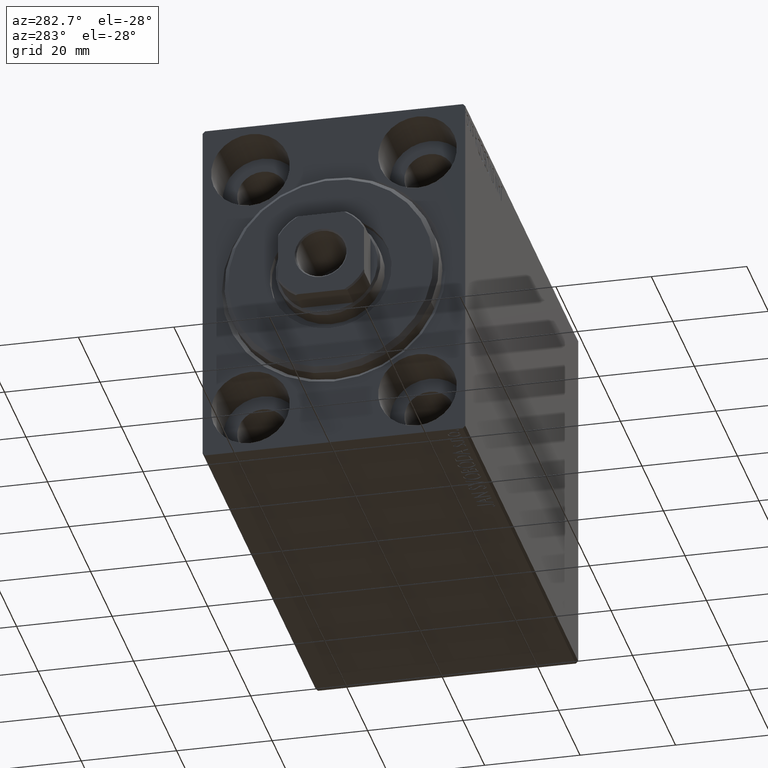
[diagram: clean part render]
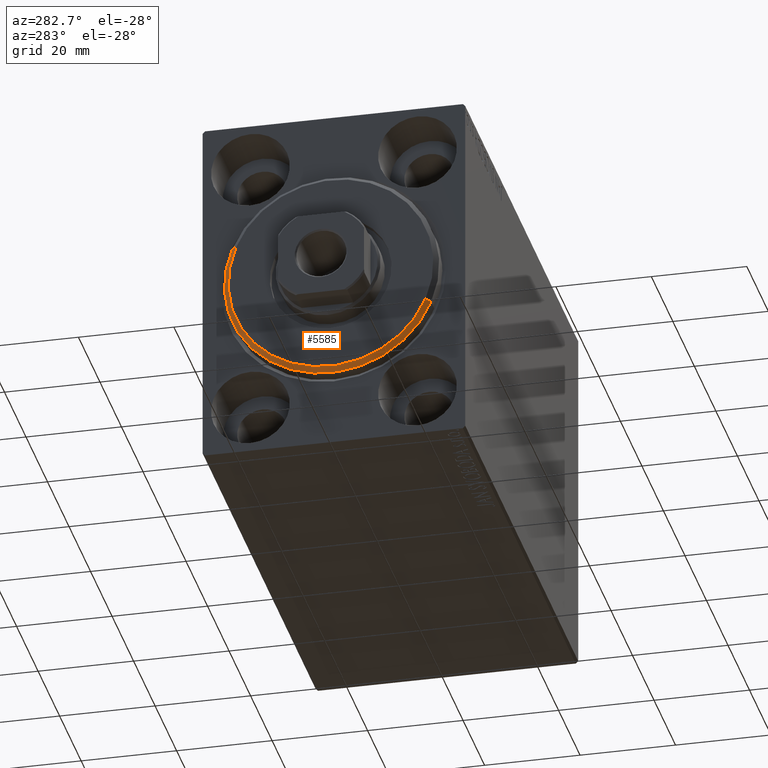
[diagram: same view with one face highlighted and labeled with its STEP entity id]
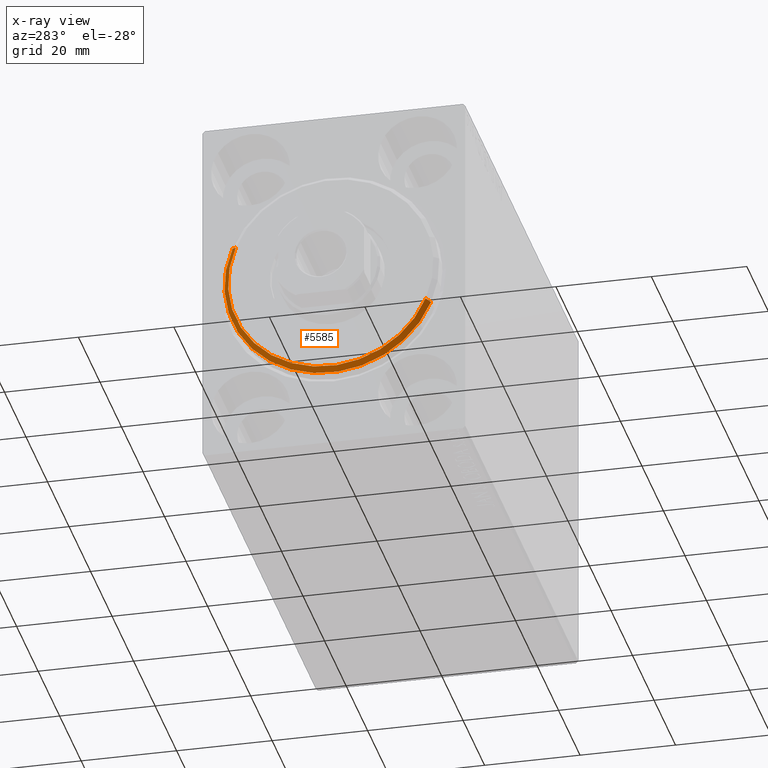
[diagram: x-ray of the same camera — body ghosted, the highlighted face saturated]
A machine part, auxiliary view. The second image highlights one B-rep face of the part: STEP entity #5585.
The next image is the same camera in x-ray: the body ghosted, the highlighted face saturated — about 0% of this face is hidden behind the body in this view.
In plain terms, the highlighted conical surface has half-angle 45 deg.
Its self-contained STEP definition (entity closure, byte-faithful):
#345 = LINE ( 'NONE', #27012, #7261 ) ;
#2325 = CARTESIAN_POINT ( 'NONE',  ( 3.000000000000000000, 0.000000000000000000, 0.000000000000000000 ) ) ;
#3232 = CARTESIAN_POINT ( 'NONE',  ( 3.000000000000000000, 2.694222958124177598E-15, -21.50000000000000355 ) ) ;
#3578 = VECTOR ( 'NONE', #35371, 1000.000000000000000 ) ;
#3840 = AXIS2_PLACEMENT_3D ( 'NONE', #6100, #39582, #29439 ) ;
#4815 = EDGE_CURVE ( 'NONE', #32833, #10908, #5629, .T. ) ;
#5585 = ADVANCED_FACE ( 'NONE', ( #43131 ), #16318, .T. ) ;
#5629 = LINE ( 'NONE', #39327, #3578 ) ;
#5816 = CARTESIAN_POINT ( 'NONE',  ( 1.999999999999999112, 2.755455298081545172E-15, -22.50000000000000355 ) ) ;
#6100 = CARTESIAN_POINT ( 'NONE',  ( 1.999999999999999112, 0.000000000000000000, 0.000000000000000000 ) ) ;
#7261 = VECTOR ( 'NONE', #27224, 1000.000000000000000 ) ;
#10889 = CIRCLE ( 'NONE', #3840, 22.50000000000000355 ) ;
#10908 = VERTEX_POINT ( 'NONE', #5816 ) ;
#12956 = CARTESIAN_POINT ( 'NONE',  ( 3.000000000000000000, 0.000000000000000000, 0.000000000000000000 ) ) ;
#16031 = ORIENTED_EDGE ( 'NONE', *, *, #4815, .T. ) ;
#16318 = CONICAL_SURFACE ( 'NONE', #17687, 21.50000000000000355, 0.7853981633974466137 ) ;
#16633 = DIRECTION ( 'NONE',  ( 1.000000000000000000, -0.000000000000000000, 0.000000000000000000 ) ) ;
#17687 = AXIS2_PLACEMENT_3D ( 'NONE', #12956, #39818, #39172 ) ;
#18784 = CARTESIAN_POINT ( 'NONE',  ( 3.000000000000000000, 0.000000000000000000, 21.50000000000000355 ) ) ;
#18862 = ORIENTED_EDGE ( 'NONE', *, *, #32943, .F. ) ;
#21719 = CARTESIAN_POINT ( 'NONE',  ( 1.999999999999999112, 0.000000000000000000, 22.50000000000000355 ) ) ;
#22816 = DIRECTION ( 'NONE',  ( 0.000000000000000000, 0.000000000000000000, -1.000000000000000000 ) ) ;
#23638 = ORIENTED_EDGE ( 'NONE', *, *, #41088, .F. ) ;
#25593 = CIRCLE ( 'NONE', #39650, 21.50000000000000355 ) ;
#27012 = CARTESIAN_POINT ( 'NONE',  ( 3.000000000000000000, 0.000000000000000000, 21.50000000000000355 ) ) ;
#27224 = DIRECTION ( 'NONE',  ( -0.7071067811865487940, 0.000000000000000000, 0.7071067811865463515 ) ) ;
#27422 = VERTEX_POINT ( 'NONE', #21719 ) ;
#29439 = DIRECTION ( 'NONE',  ( 0.000000000000000000, 0.000000000000000000, -1.000000000000000000 ) ) ;
#32694 = ORIENTED_EDGE ( 'NONE', *, *, #33877, .F. ) ;
#32833 = VERTEX_POINT ( 'NONE', #3232 ) ;
#32943 = EDGE_CURVE ( 'NONE', #37003, #27422, #345, .T. ) ;
#33877 = EDGE_CURVE ( 'NONE', #32833, #37003, #25593, .T. ) ;
#35371 = DIRECTION ( 'NONE',  ( -0.7071067811865487940, 8.659560562354919300E-17, -0.7071067811865463515 ) ) ;
#37003 = VERTEX_POINT ( 'NONE', #18784 ) ;
#39172 = DIRECTION ( 'NONE',  ( 0.000000000000000000, 0.000000000000000000, 1.000000000000000000 ) ) ;
#39327 = CARTESIAN_POINT ( 'NONE',  ( 3.000000000000000000, 2.632990618166810024E-15, -21.50000000000000355 ) ) ;
#39582 = DIRECTION ( 'NONE',  ( -1.000000000000000000, 0.000000000000000000, 0.000000000000000000 ) ) ;
#39650 = AXIS2_PLACEMENT_3D ( 'NONE', #2325, #16633, #22816 ) ;
#39818 = DIRECTION ( 'NONE',  ( -1.000000000000000000, 0.000000000000000000, 0.000000000000000000 ) ) ;
#40267 = EDGE_LOOP ( 'NONE', ( #32694, #16031, #23638, #18862 ) ) ;
#41088 = EDGE_CURVE ( 'NONE', #27422, #10908, #10889, .T. ) ;
#43131 = FACE_OUTER_BOUND ( 'NONE', #40267, .T. ) ;